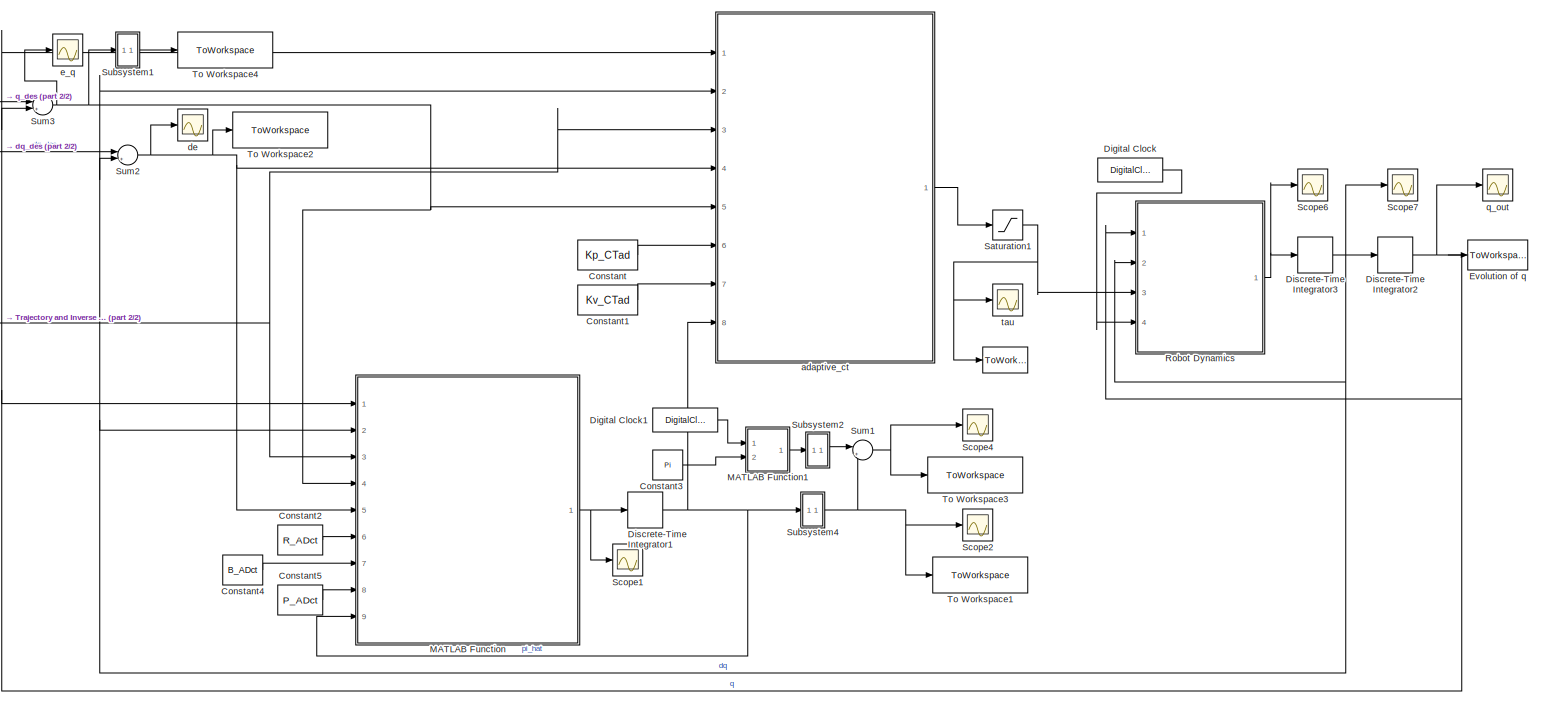
[diagram: root canvas - part 1/2, most of the canvas]
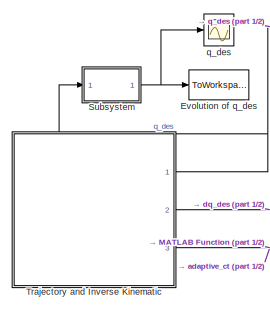
[diagram: root canvas - part 2/2, middle left region]
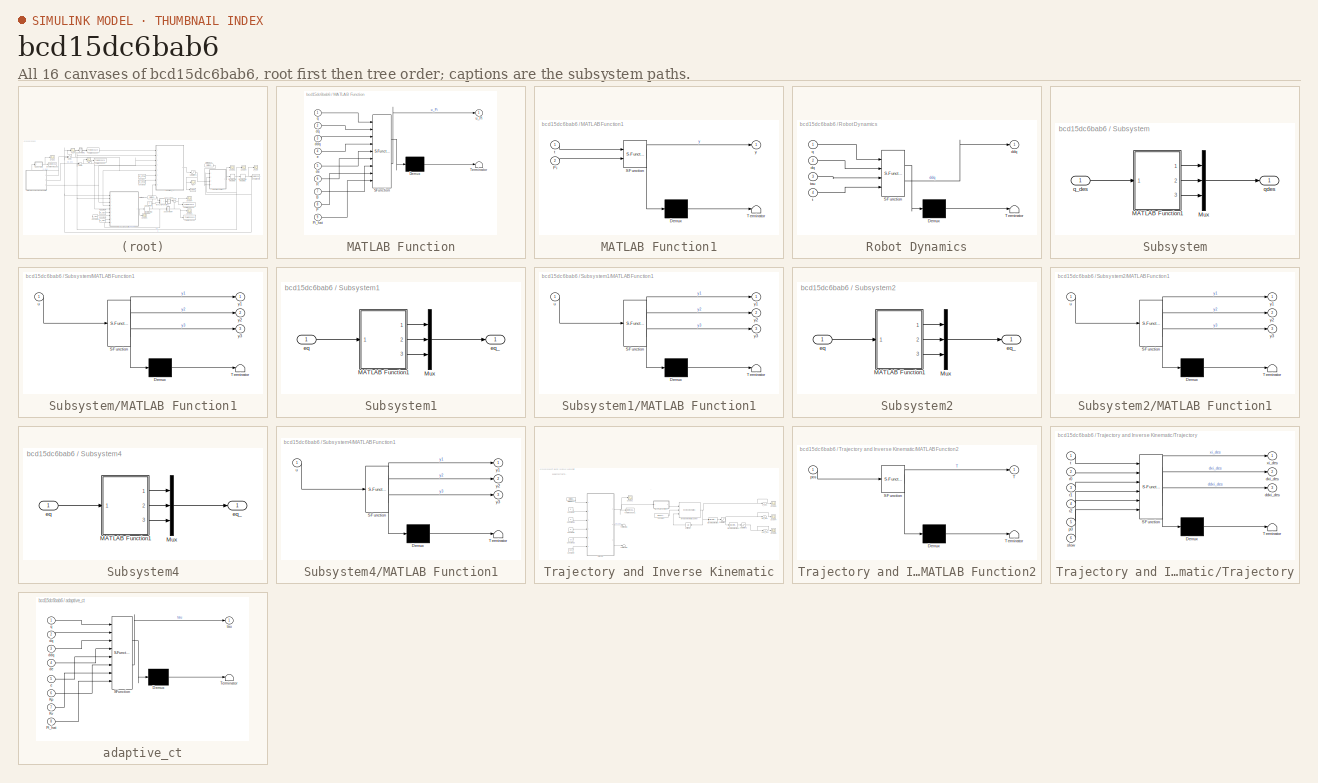
[diagram: thumbnail index - all 16 canvases of the model, root first then tree order]
MODEL slx_bcd15dc6bab6
KIND model
CONFIG AbsTol = auto
CONFIG EnableMultiTasking = off
CONFIG FixedStep = auto
CONFIG MaxStep = auto
CONFIG MinStep = auto
CONFIG RelTol = 1e-6
CONFIG SampleTimeConstraint = Unconstrained
CONFIG SolverName = VariableStepAuto
CONFIG StartTime = 0.0
CONFIG StopTime = 1500
BLOCK [ToWorkspace]          
  FixptAsFi = on
  MaxDataPoints = inf
  Ports = [1]
  SampleTime = -1
  SaveFormat = Timeseries
  VariableName = tau_out
BLOCK [Constant] Constant
  Value = Kp_CTad
BLOCK [Constant] Constant1
  Value = Kv_CTad
BLOCK [Constant] Constant2
  Value = R_ADct
BLOCK [Constant] Constant3
  Value = Pi
BLOCK [Constant] Constant4
  Value = B_ADct
BLOCK [Constant] Constant5
  Value = P_ADct
BLOCK [DigitalClock] Digital Clock
  SampleTime = 0.01
BLOCK [DigitalClock] Digital Clock1
  SampleTime = 0.01
BLOCK [DiscreteIntegrator] Discrete-Time Integrator1
  ICPrevOutput = DiscIntNeverNeededParam
  ICPrevScaledInput = DiscIntNeverNeededParam
  InitialCondition = Pi_hat0_ADct
  InitialConditionSetting = Auto
  Ports = [1, 1]
  SampleTime = -1
BLOCK [DiscreteIntegrator] Discrete-Time Integrator2
  ICPrevOutput = DiscIntNeverNeededParam
  ICPrevScaledInput = DiscIntNeverNeededParam
  InitialCondition = q0
  InitialConditionSetting = Auto
  Ports = [1, 1]
  SampleTime = -1
BLOCK [DiscreteIntegrator] Discrete-Time Integrator3
  ICPrevOutput = DiscIntNeverNeededParam
  ICPrevScaledInput = DiscIntNeverNeededParam
  InitialCondition = dq0
  InitialConditionSetting = Auto
  Ports = [1, 1]
  SampleTime = -1
BLOCK [ToWorkspace] Evolution of q
  FixptAsFi = on
  MaxDataPoints = inf
  Ports = [1]
  SampleTime = -1
  SaveFormat = Timeseries
  VariableName = q_out
BLOCK [ToWorkspace] Evolution of q_des
  FixptAsFi = on
  MaxDataPoints = inf
  Ports = [1]
  SampleTime = -1
  SaveFormat = Timeseries
  VariableName = q_des_out
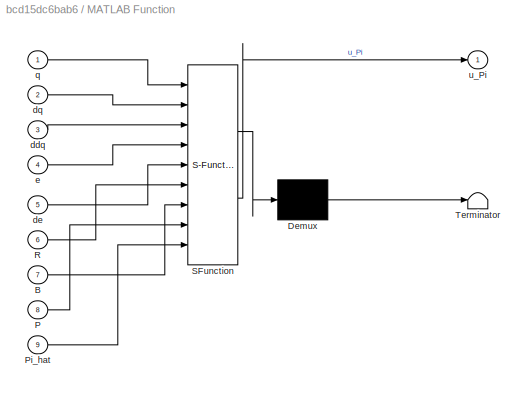
BLOCK [SubSystem] MATLAB Function
  ErrorFcn = Stateflow.Translate.translate
  PermitHierarchicalResolution = ExplicitOnly
  Ports = [9, 1]
  RequestExecContextInheritance = off
  SFBlockType = MATLAB Function
  TreatAsAtomicUnit = on
BLOCK [Demux] MATLAB Function/ Demux 
  Outputs = 1
  Ports = [1, 1]
BLOCK [S-Function] MATLAB Function/ SFunction 
  EnableBusSupport = on
  FunctionName = sf_sfun
  Parameters = param
  PortCounts = [9 2]
  Ports = [9, 2]
  SFcnIsStateOwnerBlock = off
  SFunctionDeploymentMode = off
  Tag = Stateflow S-Function 1
BLOCK [Terminator] MATLAB Function/ Terminator 
BLOCK [Inport] MATLAB Function/B
  Port = 7
BLOCK [Inport] MATLAB Function/P
  Port = 8
BLOCK [Inport] MATLAB Function/Pi_hat
  Port = 9
BLOCK [Inport] MATLAB Function/R
  Port = 6
BLOCK [Inport] MATLAB Function/ddq
  Port = 3
BLOCK [Inport] MATLAB Function/de
  Port = 5
BLOCK [Inport] MATLAB Function/dq
  Port = 2
BLOCK [Inport] MATLAB Function/e
  Port = 4
BLOCK [Inport] MATLAB Function/q
BLOCK [Outport] MATLAB Function/u_Pi
BLOCK [SubSystem] MATLAB Function1
  ErrorFcn = Stateflow.Translate.translate
  PermitHierarchicalResolution = ExplicitOnly
  Ports = [2, 1]
  RequestExecContextInheritance = off
  SFBlockType = MATLAB Function
  TreatAsAtomicUnit = on
BLOCK [Demux] MATLAB Function1/ Demux 
  Outputs = 1
  Ports = [1, 1]
BLOCK [S-Function] MATLAB Function1/ SFunction 
  EnableBusSupport = on
  FunctionName = sf_sfun
  PortCounts = [2 2]
  Ports = [2, 2]
  SFcnIsStateOwnerBlock = off
  SFunctionDeploymentMode = off
  Tag = Stateflow S-Function 7
BLOCK [Terminator] MATLAB Function1/ Terminator 
BLOCK [Inport] MATLAB Function1/Pi
  Port = 2
BLOCK [Inport] MATLAB Function1/t
BLOCK [Outport] MATLAB Function1/y
BLOCK [SubSystem] Robot Dynamics
  ErrorFcn = Stateflow.Translate.translate
  PermitHierarchicalResolution = ExplicitOnly
  Ports = [4, 1]
  RequestExecContextInheritance = off
  SFBlockType = MATLAB Function
  TreatAsAtomicUnit = on
BLOCK [Demux] Robot Dynamics/ Demux 
  Outputs = 1
  Ports = [1, 1]
BLOCK [S-Function] Robot Dynamics/ SFunction 
  EnableBusSupport = on
  FunctionName = sf_sfun
  Parameters = m1,m2,m3,param
  PortCounts = [4 2]
  Ports = [4, 2]
  SFcnIsStateOwnerBlock = off
  SFunctionDeploymentMode = off
  Tag = Stateflow S-Function 3
BLOCK [Terminator] Robot Dynamics/ Terminator 
BLOCK [Outport] Robot Dynamics/ddq
  VectorParamsAs1DForOutWhenUnconnected = off
BLOCK [Inport] Robot Dynamics/dq
  Port = 2
BLOCK [Inport] Robot Dynamics/q
BLOCK [Inport] Robot Dynamics/t
  Port = 4
BLOCK [Inport] Robot Dynamics/tau
  Port = 3
BLOCK [Saturate] Saturation1
  Commented = through
  LowerLimit = -100
  UpperLimit = 100
BLOCK [Scope] Scope1
  Commented = on
  Floating = off
  NumInputPorts = 1
  Ports = [1]
  ScopeSpecificationString = Simulink.scopes.TimeScopeBlockCfg('CurrentConfiguration', extmgr.ConfigurationSet(extmgr.Configuration('Core','General UI',true),extmgr.Configuration('Core','Source UI',true),extmgr.Configuration('Sources','WiredSimulink',true,'DataLoggingVariableName','ScopeData3'),extmgr.Configuration('Visuals','Time Domain',true,'SerializedDisplays',{struct('MinYLimReal','-4.8762','MaxYLimReal','12.50465','YLab...<+1558ch>
BLOCK [Scope] Scope2
  Floating = off
  NumInputPorts = 1
  Ports = [1]
  ScopeSpecificationString = Simulink.scopes.TimeScopeBlockCfg('CurrentConfiguration', extmgr.ConfigurationSet(extmgr.Configuration('Core','General UI',true),extmgr.Configuration('Core','Source UI',true),extmgr.Configuration('Sources','WiredSimulink',true,'DataLoggingVariableName','ScopeData1'),extmgr.Configuration('Visuals','Time Domain',true,'SerializedDisplays',{struct('MinYLimReal','1.52517','MaxYLimReal','19.69775','YLab...<+1541ch>
BLOCK [Scope] Scope4
  Floating = off
  NumInputPorts = 1
  Ports = [1]
  ScopeSpecificationString = Simulink.scopes.TimeScopeBlockCfg('CurrentConfiguration', extmgr.ConfigurationSet(extmgr.Configuration('Core','General UI',true),extmgr.Configuration('Core','Source UI',true),extmgr.Configuration('Sources','WiredSimulink',true,'DataLoggingVariableName','ScopeData1'),extmgr.Configuration('Visuals','Time Domain',true,'SerializedDisplays',{struct('MinYLimReal','-2.00169','MaxYLimReal','1.7634','YLabe...<+1522ch>
BLOCK [Scope] Scope6
  Commented = on
  Floating = off
  NumInputPorts = 1
  Ports = [1]
  ScopeSpecificationString = Simulink.scopes.TimeScopeBlockCfg('CurrentConfiguration', extmgr.ConfigurationSet(extmgr.Configuration('Core','General UI',true),extmgr.Configuration('Core','Source UI',true),extmgr.Configuration('Sources','WiredSimulink',true,'DataLoggingVariableName','ScopeData1'),extmgr.Configuration('Visuals','Time Domain',true,'SerializedDisplays',{struct('MinYLimReal','-5596.78805','MaxYLimReal','5521.07963'...<+1567ch>
BLOCK [Scope] Scope7
  Commented = on
  Floating = off
  NumInputPorts = 1
  Ports = [1]
  ScopeSpecificationString = Simulink.scopes.TimeScopeBlockCfg('CurrentConfiguration', extmgr.ConfigurationSet(extmgr.Configuration('Core','General UI',true),extmgr.Configuration('Core','Source UI',true),extmgr.Configuration('Sources','WiredSimulink',true,'DataLoggingVariableName','ScopeData2'),extmgr.Configuration('Visuals','Time Domain',true,'SerializedDisplays',{struct('MinYLimReal','-21.23035','MaxYLimReal','51.35107','YL...<+1475ch>
BLOCK [SubSystem] Subsystem
  Ports = [1, 1]
  RequestExecContextInheritance = off
BLOCK [SubSystem] Subsystem/MATLAB Function1
  ErrorFcn = Stateflow.Translate.translate
  PermitHierarchicalResolution = ExplicitOnly
  Ports = [1, 3]
  RequestExecContextInheritance = off
  SFBlockType = MATLAB Function
  TreatAsAtomicUnit = on
BLOCK [Demux] Subsystem/MATLAB Function1/ Demux 
  Outputs = 1
  Ports = [1, 1]
BLOCK [S-Function] Subsystem/MATLAB Function1/ SFunction 
  EnableBusSupport = on
  FunctionName = sf_sfun
  PortCounts = [1 4]
  Ports = [1, 4]
  SFcnIsStateOwnerBlock = off
  SFunctionDeploymentMode = off
  Tag = Stateflow S-Function 4
BLOCK [Terminator] Subsystem/MATLAB Function1/ Terminator 
BLOCK [Inport] Subsystem/MATLAB Function1/u
BLOCK [Outport] Subsystem/MATLAB Function1/y1
BLOCK [Outport] Subsystem/MATLAB Function1/y2
  Port = 2
BLOCK [Outport] Subsystem/MATLAB Function1/y3
  Port = 3
BLOCK [Mux] Subsystem/Mux
  DisplayOption = bar
  Inputs = 3
  Ports = [3, 1]
BLOCK [Inport] Subsystem/q_des
BLOCK [Outport] Subsystem/qdes
BLOCK [SubSystem] Subsystem1
  Ports = [1, 1]
  RequestExecContextInheritance = off
BLOCK [SubSystem] Subsystem1/MATLAB Function1
  ErrorFcn = Stateflow.Translate.translate
  PermitHierarchicalResolution = ExplicitOnly
  Ports = [1, 3]
  RequestExecContextInheritance = off
  SFBlockType = MATLAB Function
  TreatAsAtomicUnit = on
BLOCK [Demux] Subsystem1/MATLAB Function1/ Demux 
  Outputs = 1
  Ports = [1, 1]
BLOCK [S-Function] Subsystem1/MATLAB Function1/ SFunction 
  EnableBusSupport = on
  FunctionName = sf_sfun
  PortCounts = [1 4]
  Ports = [1, 4]
  SFcnIsStateOwnerBlock = off
  SFunctionDeploymentMode = off
  Tag = Stateflow S-Function 2
BLOCK [Terminator] Subsystem1/MATLAB Function1/ Terminator 
BLOCK [Inport] Subsystem1/MATLAB Function1/u
BLOCK [Outport] Subsystem1/MATLAB Function1/y1
BLOCK [Outport] Subsystem1/MATLAB Function1/y2
  Port = 2
BLOCK [Outport] Subsystem1/MATLAB Function1/y3
  Port = 3
BLOCK [Mux] Subsystem1/Mux
  DisplayOption = bar
  Inputs = 3
  Ports = [3, 1]
BLOCK [Inport] Subsystem1/eq
BLOCK [Outport] Subsystem1/eq_
BLOCK [SubSystem] Subsystem2
  Ports = [1, 1]
  RequestExecContextInheritance = off
BLOCK [SubSystem] Subsystem2/MATLAB Function1
  ErrorFcn = Stateflow.Translate.translate
  PermitHierarchicalResolution = ExplicitOnly
  Ports = [1, 3]
  RequestExecContextInheritance = off
  SFBlockType = MATLAB Function
  TreatAsAtomicUnit = on
BLOCK [Demux] Subsystem2/MATLAB Function1/ Demux 
  Outputs = 1
  Ports = [1, 1]
BLOCK [S-Function] Subsystem2/MATLAB Function1/ SFunction 
  EnableBusSupport = on
  FunctionName = sf_sfun
  PortCounts = [1 4]
  Ports = [1, 4]
  SFcnIsStateOwnerBlock = off
  SFunctionDeploymentMode = off
  Tag = Stateflow S-Function 8
BLOCK [Terminator] Subsystem2/MATLAB Function1/ Terminator 
BLOCK [Inport] Subsystem2/MATLAB Function1/u
BLOCK [Outport] Subsystem2/MATLAB Function1/y1
BLOCK [Outport] Subsystem2/MATLAB Function1/y2
  Port = 2
BLOCK [Outport] Subsystem2/MATLAB Function1/y3
  Port = 3
BLOCK [Mux] Subsystem2/Mux
  DisplayOption = bar
  Inputs = 3
  Ports = [3, 1]
BLOCK [Inport] Subsystem2/eq
BLOCK [Outport] Subsystem2/eq_
BLOCK [SubSystem] Subsystem4
  Ports = [1, 1]
  RequestExecContextInheritance = off
BLOCK [SubSystem] Subsystem4/MATLAB Function1
  ErrorFcn = Stateflow.Translate.translate
  PermitHierarchicalResolution = ExplicitOnly
  Ports = [1, 3]
  RequestExecContextInheritance = off
  SFBlockType = MATLAB Function
  TreatAsAtomicUnit = on
BLOCK [Demux] Subsystem4/MATLAB Function1/ Demux 
  Outputs = 1
  Ports = [1, 1]
BLOCK [S-Function] Subsystem4/MATLAB Function1/ SFunction 
  EnableBusSupport = on
  FunctionName = sf_sfun
  PortCounts = [1 4]
  Ports = [1, 4]
  SFcnIsStateOwnerBlock = off
  SFunctionDeploymentMode = off
  Tag = Stateflow S-Function 9
BLOCK [Terminator] Subsystem4/MATLAB Function1/ Terminator 
BLOCK [Inport] Subsystem4/MATLAB Function1/u
BLOCK [Outport] Subsystem4/MATLAB Function1/y1
BLOCK [Outport] Subsystem4/MATLAB Function1/y2
  Port = 2
BLOCK [Outport] Subsystem4/MATLAB Function1/y3
  Port = 3
BLOCK [Mux] Subsystem4/Mux
  DisplayOption = bar
  Inputs = 3
  Ports = [3, 1]
BLOCK [Inport] Subsystem4/eq
BLOCK [Outport] Subsystem4/eq_
BLOCK [Sum] Sum1
  Inputs = |+-
  Ports = [2, 1]
BLOCK [Sum] Sum2
  Inputs = |+-
  Ports = [2, 1]
BLOCK [Sum] Sum3
  Inputs = |+-
  Ports = [2, 1]
BLOCK [ToWorkspace] To Workspace1
  FixptAsFi = on
  MaxDataPoints = inf
  Ports = [1]
  SampleTime = -1
  SaveFormat = Timeseries
  VariableName = pi_hat_out
BLOCK [ToWorkspace] To Workspace2
  Commented = on
  FixptAsFi = on
  MaxDataPoints = inf
  Ports = [1]
  SampleTime = -1
  SaveFormat = Timeseries
  VariableName = de_out
BLOCK [ToWorkspace] To Workspace3
  FixptAsFi = on
  MaxDataPoints = inf
  Ports = [1]
  SampleTime = -1
  SaveFormat = Timeseries
  VariableName = pi_tilde_out
BLOCK [ToWorkspace] To Workspace4
  FixptAsFi = on
  MaxDataPoints = inf
  Ports = [1]
  SampleTime = -1
  SaveFormat = Timeseries
  VariableName = e_q_out
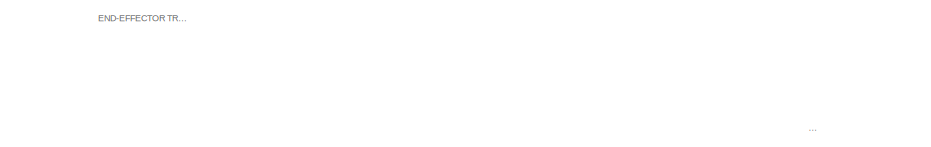
[diagram: Trajectory and Inverse Kinematic - part 1/2, top left region]
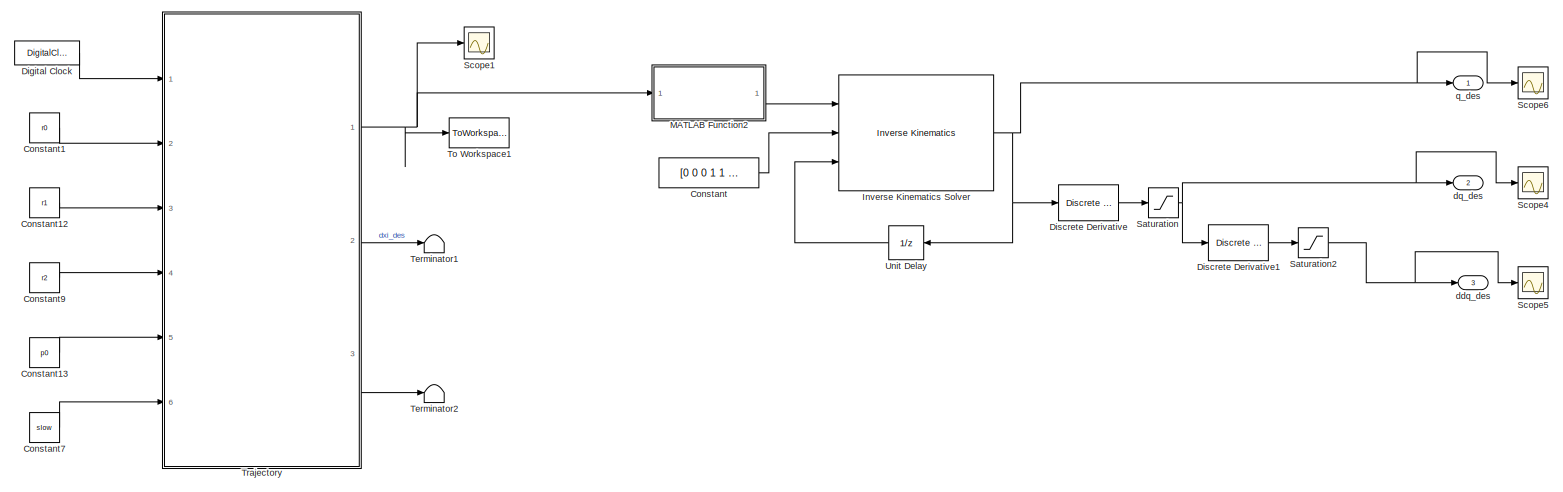
[diagram: Trajectory and Inverse Kinematic - part 2/2, most of the canvas]
BLOCK [SubSystem] Trajectory and Inverse Kinematic
  Ports = [0, 3]
  RequestExecContextInheritance = off
BLOCK [Constant] Trajectory and Inverse Kinematic/Constant
  Value = [0 0 0 1 1 1]
BLOCK [Constant] Trajectory and Inverse Kinematic/Constant1
  Value = r0
BLOCK [Constant] Trajectory and Inverse Kinematic/Constant12
  Value = r1
BLOCK [Constant] Trajectory and Inverse Kinematic/Constant13
  Value = p0
BLOCK [Constant] Trajectory and Inverse Kinematic/Constant7
  Value = slow
BLOCK [Constant] Trajectory and Inverse Kinematic/Constant9
  Value = r2
BLOCK [DigitalClock] Trajectory and Inverse Kinematic/Digital Clock
  SampleTime = 0.01
BLOCK [Reference] Trajectory and Inverse Kinematic/Discrete Derivative  REF=simulink/Discrete/Discrete Derivative
  Ports = [1, 1]
  SourceBlock = simulink/Discrete/Discrete Derivative
  SourceProductBaseCode = SL
  SourceType = Discrete Derivative
BLOCK [Reference] Trajectory and Inverse Kinematic/Discrete Derivative1  REF=simulink/Discrete/Discrete Derivative
  Ports = [1, 1]
  SourceBlock = simulink/Discrete/Discrete Derivative
  SourceProductBaseCode = SL
  SourceType = Discrete Derivative
BLOCK [Reference] Trajectory and Inverse Kinematic/Inverse Kinematics Solver  REF=robotmaniplib/Inverse Kinematics
  Ports = [3, 1]
  SourceBlock = robotmaniplib/Inverse Kinematics
  SourceProductBaseCode = RO
  SourceType = Inverse Kinematics
BLOCK [SubSystem] Trajectory and Inverse Kinematic/MATLAB Function2
  ErrorFcn = Stateflow.Translate.translate
  PermitHierarchicalResolution = ExplicitOnly
  Ports = [1, 1]
  RequestExecContextInheritance = off
  SFBlockType = MATLAB Function
  TreatAsAtomicUnit = on
BLOCK [Demux] Trajectory and Inverse Kinematic/MATLAB Function2/ Demux 
  Outputs = 1
  Ports = [1, 1]
BLOCK [S-Function] Trajectory and Inverse Kinematic/MATLAB Function2/ SFunction 
  EnableBusSupport = on
  FunctionName = sf_sfun
  PortCounts = [1 2]
  Ports = [1, 2]
  SFcnIsStateOwnerBlock = off
  SFunctionDeploymentMode = off
  Tag = Stateflow S-Function 11
BLOCK [Terminator] Trajectory and Inverse Kinematic/MATLAB Function2/ Terminator 
BLOCK [Outport] Trajectory and Inverse Kinematic/MATLAB Function2/T
BLOCK [Inport] Trajectory and Inverse Kinematic/MATLAB Function2/pos
BLOCK [Saturate] Trajectory and Inverse Kinematic/Saturation
BLOCK [Saturate] Trajectory and Inverse Kinematic/Saturation2
  LowerLimit = -0.1
  UpperLimit = 0.1
BLOCK [Scope] Trajectory and Inverse Kinematic/Scope1
  Floating = off
  NumInputPorts = 1
  Ports = [1]
  ScopeSpecificationString = Simulink.scopes.TimeScopeBlockCfg('CurrentConfiguration', extmgr.ConfigurationSet(extmgr.Configuration('Core','General UI',true),extmgr.Configuration('Core','Source UI',true),extmgr.Configuration('Sources','WiredSimulink',true,'DataLoggingVariableName','ScopeData1'),extmgr.Configuration('Visuals','Time Domain',true,'SerializedDisplays',{struct('MinYLimReal','0.09832','MaxYLimReal','0.1203','YLabel...<+1625ch>
BLOCK [Scope] Trajectory and Inverse Kinematic/Scope4
  Commented = on
  Floating = off
  NumInputPorts = 1
  Ports = [1]
  ScopeSpecificationString = Simulink.scopes.TimeScopeBlockCfg('CurrentConfiguration', extmgr.ConfigurationSet(extmgr.Configuration('Core','General UI',true),extmgr.Configuration('Core','Source UI',true),extmgr.Configuration('Sources','WiredSimulink',true,'DataLoggingVariableName','ScopeData2'),extmgr.Configuration('Visuals','Time Domain',true,'SerializedDisplays',{struct('MinYLimReal','-2.48147','MaxYLimReal','2.33327','YLab...<+1655ch>
BLOCK [Scope] Trajectory and Inverse Kinematic/Scope5
  Commented = on
  Floating = off
  NumInputPorts = 1
  Ports = [1]
  ScopeSpecificationString = Simulink.scopes.TimeScopeBlockCfg('CurrentConfiguration', extmgr.ConfigurationSet(extmgr.Configuration('Core','General UI',true),extmgr.Configuration('Core','Source UI',true),extmgr.Configuration('Sources','WiredSimulink',true,'DataLoggingVariableName','ScopeData3'),extmgr.Configuration('Visuals','Time Domain',true,'SerializedDisplays',{struct('MinYLimReal','-0.125','MaxYLimReal','0.125','YLabelRe...<+1672ch>
BLOCK [Scope] Trajectory and Inverse Kinematic/Scope6
  Commented = on
  Floating = off
  NumInputPorts = 1
  Ports = [1]
  ScopeSpecificationString = Simulink.scopes.TimeScopeBlockCfg('CurrentConfiguration', extmgr.ConfigurationSet(extmgr.Configuration('Core','General UI',true),extmgr.Configuration('Core','Source UI',true),extmgr.Configuration('Sources','WiredSimulink',true,'DataLoggingVariableName','ScopeData3'),extmgr.Configuration('Visuals','Time Domain',true,'SerializedDisplays',{struct('MinYLimReal','-2.87521','MaxYLimReal','1.78731','YLab...<+1742ch>
BLOCK [Terminator] Trajectory and Inverse Kinematic/Terminator1
BLOCK [Terminator] Trajectory and Inverse Kinematic/Terminator2
BLOCK [ToWorkspace] Trajectory and Inverse Kinematic/To Workspace1
  FixptAsFi = on
  MaxDataPoints = inf
  Ports = [1]
  SampleTime = -1
  SaveFormat = Timeseries
  VariableName = xi_des_out
BLOCK [SubSystem] Trajectory and Inverse Kinematic/Trajectory
  ErrorFcn = Stateflow.Translate.translate
  PermitHierarchicalResolution = ExplicitOnly
  Ports = [6, 3]
  RequestExecContextInheritance = off
  SFBlockType = MATLAB Function
  TreatAsAtomicUnit = on
BLOCK [Demux] Trajectory and Inverse Kinematic/Trajectory/ Demux 
  Outputs = 1
  Ports = [1, 1]
BLOCK [S-Function] Trajectory and Inverse Kinematic/Trajectory/ SFunction 
  EnableBusSupport = on
  FunctionName = sf_sfun
  PortCounts = [6 4]
  Ports = [6, 4]
  SFcnIsStateOwnerBlock = off
  SFunctionDeploymentMode = off
  Tag = Stateflow S-Function 6
BLOCK [Terminator] Trajectory and Inverse Kinematic/Trajectory/ Terminator 
BLOCK [Outport] Trajectory and Inverse Kinematic/Trajectory/ddxi_des
  Port = 3
  VectorParamsAs1DForOutWhenUnconnected = off
BLOCK [Outport] Trajectory and Inverse Kinematic/Trajectory/dxi_des
  Port = 2
  VectorParamsAs1DForOutWhenUnconnected = off
BLOCK [Inport] Trajectory and Inverse Kinematic/Trajectory/p0
  Port = 5
BLOCK [Inport] Trajectory and Inverse Kinematic/Trajectory/r0
  Port = 2
BLOCK [Inport] Trajectory and Inverse Kinematic/Trajectory/r1
  Port = 3
BLOCK [Inport] Trajectory and Inverse Kinematic/Trajectory/r2
  Port = 4
BLOCK [Inport] Trajectory and Inverse Kinematic/Trajectory/slow
  Port = 6
BLOCK [Inport] Trajectory and Inverse Kinematic/Trajectory/t
BLOCK [Outport] Trajectory and Inverse Kinematic/Trajectory/xi_des
  VectorParamsAs1DForOutWhenUnconnected = off
BLOCK [UnitDelay] Trajectory and Inverse Kinematic/Unit Delay
  HasFrameUpgradeWarning = on
  SampleTime = -1
BLOCK [Outport] Trajectory and Inverse Kinematic/ddq_des
  Port = 3
  VectorParamsAs1DForOutWhenUnconnected = off
BLOCK [Outport] Trajectory and Inverse Kinematic/dq_des
  Port = 2
  VectorParamsAs1DForOutWhenUnconnected = off
BLOCK [Outport] Trajectory and Inverse Kinematic/q_des
  VectorParamsAs1DForOutWhenUnconnected = off
BLOCK [SubSystem] adaptive_ct
  ErrorFcn = Stateflow.Translate.translate
  PermitHierarchicalResolution = ExplicitOnly
  Ports = [8, 1]
  RequestExecContextInheritance = off
  SFBlockType = MATLAB Function
  TreatAsAtomicUnit = on
BLOCK [Demux] adaptive_ct/ Demux 
  Outputs = 1
  Ports = [1, 1]
BLOCK [S-Function] adaptive_ct/ SFunction 
  EnableBusSupport = on
  FunctionName = sf_sfun
  Parameters = param
  PortCounts = [8 2]
  Ports = [8, 2]
  SFcnIsStateOwnerBlock = off
  SFunctionDeploymentMode = off
  Tag = Stateflow S-Function 5
BLOCK [Terminator] adaptive_ct/ Terminator 
BLOCK [Inport] adaptive_ct/Kp
  Port = 6
BLOCK [Inport] adaptive_ct/Kv
  Port = 7
BLOCK [Inport] adaptive_ct/Pi_hat
  Port = 8
BLOCK [Inport] adaptive_ct/ddq
  Port = 3
BLOCK [Inport] adaptive_ct/de
  Port = 4
BLOCK [Inport] adaptive_ct/dq
  Port = 2
BLOCK [Inport] adaptive_ct/e
  Port = 5
BLOCK [Inport] adaptive_ct/q
BLOCK [Outport] adaptive_ct/tau
  VectorParamsAs1DForOutWhenUnconnected = off
BLOCK [Scope] de
  Commented = on
  Floating = off
  NumInputPorts = 1
  Ports = [1]
  ScopeSpecificationString = Simulink.scopes.TimeScopeBlockCfg('CurrentConfiguration', extmgr.ConfigurationSet(extmgr.Configuration('Core','General UI',true),extmgr.Configuration('Core','Source UI',true),extmgr.Configuration('Sources','WiredSimulink',true,'DataLoggingVariableName','ScopeData2'),extmgr.Configuration('Visuals','Time Domain',true,'SerializedDisplays',{struct('MinYLimReal','-6.20753','MaxYLimReal','3.86603','YLab...<+1522ch>
BLOCK [Scope] e_q
  Floating = off
  NumInputPorts = 1
  Ports = [1]
  ScopeSpecificationString = Simulink.scopes.TimeScopeBlockCfg('CurrentConfiguration', extmgr.ConfigurationSet(extmgr.Configuration('Core','General UI',true),extmgr.Configuration('Core','Source UI',true),extmgr.Configuration('Sources','WiredSimulink',true,'DataLoggingVariableName','ScopeData1'),extmgr.Configuration('Visuals','Time Domain',true,'SerializedDisplays',{struct('MinYLimReal','-0.15887','MaxYLimReal','0.36797','YLab...<+1519ch>
BLOCK [Scope] q_des
  Floating = off
  NumInputPorts = 1
  Ports = [1]
  ScopeSpecificationString = Simulink.scopes.TimeScopeBlockCfg('CurrentConfiguration', extmgr.ConfigurationSet(extmgr.Configuration('Core','General UI',true),extmgr.Configuration('Core','Source UI',true),extmgr.Configuration('Sources','WiredSimulink',true,'DataLoggingVariableName','ScopeData4'),extmgr.Configuration('Visuals','Time Domain',true,'SerializedDisplays',{struct('MinYLimReal','0.01921','MaxYLimReal','0.02694','YLabe...<+1602ch>
BLOCK [Scope] q_out
  Floating = off
  NumInputPorts = 1
  Ports = [1]
  ScopeSpecificationString = Simulink.scopes.TimeScopeBlockCfg('CurrentConfiguration', extmgr.ConfigurationSet(extmgr.Configuration('Core','General UI',true),extmgr.Configuration('Core','Source UI',true),extmgr.Configuration('Sources','WiredSimulink',true,'DataLoggingVariableName','ScopeData3'),extmgr.Configuration('Visuals','Time Domain',true,'SerializedDisplays',{struct('MinYLimReal','-2.40129','MaxYLimReal','1.3537','YLabe...<+1582ch>
BLOCK [Scope] tau
  Commented = on
  Floating = off
  NumInputPorts = 1
  Ports = [1]
  ScopeSpecificationString = Simulink.scopes.TimeScopeBlockCfg('CurrentConfiguration', extmgr.ConfigurationSet(extmgr.Configuration('Core','General UI',true),extmgr.Configuration('Core','Source UI',true),extmgr.Configuration('Sources','WiredSimulink',true,'DataLoggingVariableName','ScopeData2'),extmgr.Configuration('Visuals','Time Domain',true,'SerializedDisplays',{struct('MinYLimReal','-206.65394','MaxYLimReal','174.75957','...<+1558ch>
ANNOTATION Trajectory and Inverse Kinematic: INVERSE KINEMATICS
ANNOTATION Trajectory and Inverse Kinematic: END-EFFECTOR TRAJECTORY
LINE Constant1:1 -> adaptive_ct:7
LINE Constant2:1 -> MATLAB Function:6
LINE Constant3:1 -> MATLAB Function1:2
LINE Constant4:1 -> MATLAB Function:7
LINE Constant5:1 -> MATLAB Function:8
LINE Constant:1 -> adaptive_ct:6
LINE Digital Clock1:1 -> MATLAB Function1:1
LINE Digital Clock:1 -> Robot Dynamics:4
NET Discrete-Time Integrator1:1 -> MATLAB Function:9, Subsystem4:1, adaptive_ct:8
NET Discrete-Time Integrator2:1 -> Evolution of q:1, MATLAB Function:1, Robot Dynamics:1, Sum3:2, adaptive_ct:1, q_out:1
NET Discrete-Time Integrator3:1 -> Discrete-Time Integrator2:1, MATLAB Function:2, Robot Dynamics:2, Scope7:1, Sum2:2, adaptive_ct:2
LINE MATLAB Function1:1 -> Subsystem2:1
NET MATLAB Function:1 -> Discrete-Time Integrator1:1, Scope1:1
NET Robot Dynamics:1 -> Discrete-Time Integrator3:1, Scope6:1
NET Saturation1:1 ->          :1, Robot Dynamics:3, tau:1
LINE Subsystem/MATLAB Function1:1 -> Subsystem/Mux:1
LINE Subsystem/MATLAB Function1:2 -> Subsystem/Mux:2
LINE Subsystem/MATLAB Function1:3 -> Subsystem/Mux:3
LINE Subsystem/Mux:1 -> Subsystem/qdes:1
LINE Subsystem/q_des:1 -> Subsystem/MATLAB Function1:1
LINE Subsystem1/MATLAB Function1:1 -> Subsystem1/Mux:1
LINE Subsystem1/MATLAB Function1:2 -> Subsystem1/Mux:2
LINE Subsystem1/MATLAB Function1:3 -> Subsystem1/Mux:3
LINE Subsystem1/Mux:1 -> Subsystem1/eq_:1
LINE Subsystem1/eq:1 -> Subsystem1/MATLAB Function1:1
LINE Subsystem1:1 -> To Workspace4:1
LINE Subsystem2/MATLAB Function1:1 -> Subsystem2/Mux:1
LINE Subsystem2/MATLAB Function1:2 -> Subsystem2/Mux:2
LINE Subsystem2/MATLAB Function1:3 -> Subsystem2/Mux:3
LINE Subsystem2/Mux:1 -> Subsystem2/eq_:1
LINE Subsystem2/eq:1 -> Subsystem2/MATLAB Function1:1
LINE Subsystem2:1 -> Sum1:1
LINE Subsystem4/MATLAB Function1:1 -> Subsystem4/Mux:1
LINE Subsystem4/MATLAB Function1:2 -> Subsystem4/Mux:2
LINE Subsystem4/MATLAB Function1:3 -> Subsystem4/Mux:3
LINE Subsystem4/Mux:1 -> Subsystem4/eq_:1
LINE Subsystem4/eq:1 -> Subsystem4/MATLAB Function1:1
NET Subsystem4:1 -> Scope2:1, Sum1:2, To Workspace1:1
NET Subsystem:1 -> Evolution of q_des:1, q_des:1
NET Sum1:1 -> Scope4:1, To Workspace3:1
NET Sum2:1 -> MATLAB Function:5, To Workspace2:1, adaptive_ct:4, de:1
NET Sum3:1 -> MATLAB Function:4, Subsystem1:1, adaptive_ct:5, e_q:1
LINE Trajectory and Inverse Kinematic/Constant12:1 -> Trajectory and Inverse Kinematic/Trajectory:3
LINE Trajectory and Inverse Kinematic/Constant13:1 -> Trajectory and Inverse Kinematic/Trajectory:5
LINE Trajectory and Inverse Kinematic/Constant1:1 -> Trajectory and Inverse Kinematic/Trajectory:2
LINE Trajectory and Inverse Kinematic/Constant7:1 -> Trajectory and Inverse Kinematic/Trajectory:6
LINE Trajectory and Inverse Kinematic/Constant9:1 -> Trajectory and Inverse Kinematic/Trajectory:4
LINE Trajectory and Inverse Kinematic/Constant:1 -> Trajectory and Inverse Kinematic/Inverse Kinematics Solver:2
LINE Trajectory and Inverse Kinematic/Digital Clock:1 -> Trajectory and Inverse Kinematic/Trajectory:1
LINE Trajectory and Inverse Kinematic/Discrete Derivative1:1 -> Trajectory and Inverse Kinematic/Saturation2:1
LINE Trajectory and Inverse Kinematic/Discrete Derivative:1 -> Trajectory and Inverse Kinematic/Saturation:1
NET Trajectory and Inverse Kinematic/Inverse Kinematics Solver:1 -> Trajectory and Inverse Kinematic/Discrete Derivative:1, Trajectory and Inverse Kinematic/Scope6:1, Trajectory and Inverse Kinematic/Unit Delay:1, Trajectory and Inverse Kinematic/q_des:1
LINE Trajectory and Inverse Kinematic/MATLAB Function2:1 -> Trajectory and Inverse Kinematic/Inverse Kinematics Solver:1
NET Trajectory and Inverse Kinematic/Saturation2:1 -> Trajectory and Inverse Kinematic/Scope5:1, Trajectory and Inverse Kinematic/ddq_des:1
NET Trajectory and Inverse Kinematic/Saturation:1 -> Trajectory and Inverse Kinematic/Discrete Derivative1:1, Trajectory and Inverse Kinematic/Scope4:1, Trajectory and Inverse Kinematic/dq_des:1
NET Trajectory and Inverse Kinematic/Trajectory:1 -> Trajectory and Inverse Kinematic/MATLAB Function2:1, Trajectory and Inverse Kinematic/Scope1:1, Trajectory and Inverse Kinematic/To Workspace1:1
LINE Trajectory and Inverse Kinematic/Trajectory:2 -> Trajectory and Inverse Kinematic/Terminator1:1
LINE Trajectory and Inverse Kinematic/Trajectory:3 -> Trajectory and Inverse Kinematic/Terminator2:1
LINE Trajectory and Inverse Kinematic/Unit Delay:1 -> Trajectory and Inverse Kinematic/Inverse Kinematics Solver:3
NET Trajectory and Inverse Kinematic:1 -> Subsystem:1, Sum3:1
LINE Trajectory and Inverse Kinematic:2 -> Sum2:1
NET Trajectory and Inverse Kinematic:3 -> MATLAB Function:3, adaptive_ct:3
LINE adaptive_ct:1 -> Saturation1:1
note: NET lines group one-source signal fan-out (src -> all destinations, sorted); 1:1 wires keep LINE
CHART Subsystem2/MATLAB Function1 states=1 transitions=1
  STATE_LABEL 'eML_blk_kernel()'
  STATE_LABEL 'SCRIPT:\nfunction [y1,y2,y3] = fcn(u)\n\ny1 = squeeze(u(1));\ny2 = squeeze(u(2));\ny3 = squeeze(u(3));'
CHART Subsystem4/MATLAB Function1 states=1 transitions=1
  STATE_LABEL 'eML_blk_kernel()'
  STATE_LABEL 'SCRIPT:\nfunction [y1,y2,y3] = fcn(u)\n\ny1 = squeeze(u(1));\ny2 = squeeze(u(2));\ny3 = squeeze(u(3));'
CHART Trajectory and Inverse Kinematic/MATLAB Function2 states=1 transitions=1
  STATE_LABEL 'eML_blk_kernel()'
  STATE_LABEL 'SCRIPT:\nfunction T = homogeneus_transf(pos)\n    \n    T=eye(4);\n    \n    T = [  eye(3),     [pos(1);pos(2);pos(3) ];\n         0 0 0              1           ]; \n\nend'
CHART MATLAB Function states=1 transitions=1
  STATE_LABEL 'eML_blk_kernel()'
  STATE_LABEL "SCRIPT:\nfunction u_Pi = updating(q, dq, ddq, e, de, R, B, P, Pi_hat, param)\n  \n    g = 9.81;\n    \n    Y = Y_fun(g,param,ddq,dq,q);\n    \n    M_hat = B_3r(param,Pi_hat(1),Pi_hat(2),Pi_hat(3),q);\n    \n    x = [e; de];\n    \n    u_Pi = - pinv(R) * Y' * (pinv(M_hat,1e-3))' * B' * P * x;\n\nend\n\n\n\n   "
CHART Subsystem1/MATLAB Function1 states=1 transitions=1
  STATE_LABEL 'eML_blk_kernel()'
  STATE_LABEL 'SCRIPT:\nfunction [y1,y2,y3] = fcn(u)\n\ny1 = squeeze(u(1));\ny2 = squeeze(u(2));\ny3 = squeeze(u(3));'
CHART Robot Dynamics states=1 transitions=1
  STATE_LABEL 'eML_blk_kernel()'
  STATE_LABEL 'SCRIPT:\nfunction ddq = inverse_dynamics(q, dq, tau, t, m1, m2, m3, param)\n    \n    g = 9.81;\n\n    if t > 200\n        m2 = m2 + 1;\n    end\n\n    % Get dynamic matrices\n    M = B_3r(param,m1,m2,m3,q);\n    C = C_3r(param,m1,m2,m3,q,dq);\n    G = G_3r(g,param,m1,m2,m3,q);\n    \n    ddq = pinv(M)*(tau - C*dq - G);\n\nend\n\n\n\n'
CHART Subsystem/MATLAB Function1 states=1 transitions=1
  STATE_LABEL 'eML_blk_kernel()'
  STATE_LABEL 'SCRIPT:\nfunction [y1,y2,y3] = fcn(u)\n\ny1 = squeeze(u(1));\ny2 = squeeze(u(2));\ny3 = squeeze(u(3));'
CHART adaptive_ct states=1 transitions=1
  STATE_LABEL 'eML_blk_kernel()'
  STATE_LABEL 'SCRIPT:\nfunction tau = adaptive_ct(q, dq, ddq, de, e, Kp, Kv, Pi_hat, param)\n\n    g = 9.81;\n    \n    Y = Y_fun(g,param,ddq,dq,q);\n    \n    % Control law\n    tau = Y*Pi_hat + Kv*de + Kp*e;\n\nend\n\n\n\n'
CHART Trajectory and Inverse Kinematic/Trajectory states=1 transitions=1
  STATE_LABEL 'eML_blk_kernel()'
  STATE_LABEL 'SCRIPT:\nfunction [xi_des, dxi_des, ddxi_des] = trajectory(t,r0,r1,r2,p0,slow)\n\n    k=slow;\n    \n    xi_des =   [r0*sin(t/(2*k))       ; r1*sin(t/k)     ; r2*cos(t/k)     ] + p0;\n    dxi_des =  [r0/2/k*cos(t/(2*k))   ; r1/k*cos(t/k)   ; -r2/k*sin(t/k)  ];\n    ddxi_des = [-r0/4/k/k*sin(t/(2*k)); -r1/k/k*sin(t/k); -r2/k/k*cos(t/k)];\n\nend\n'
CHART MATLAB Function1 states=1 transitions=1
  STATE_LABEL 'eML_blk_kernel()'
  STATE_LABEL 'SCRIPT:\nfunction y = fcn(t,Pi)\n\n    if t > 200\n        Pi(2) = Pi(2) + 1;\n    end\n\n    y = Pi;\n\nend\n'
CHART  states=0 transitions=0
CHART  states=0 transitions=0
CHART  states=0 transitions=0
CHART  states=0 transitions=0
CHART  states=0 transitions=0
CHART  states=0 transitions=0
CHART  states=0 transitions=0
CHART  states=0 transitions=0
CHART  states=0 transitions=0
CHART  states=0 transitions=0
